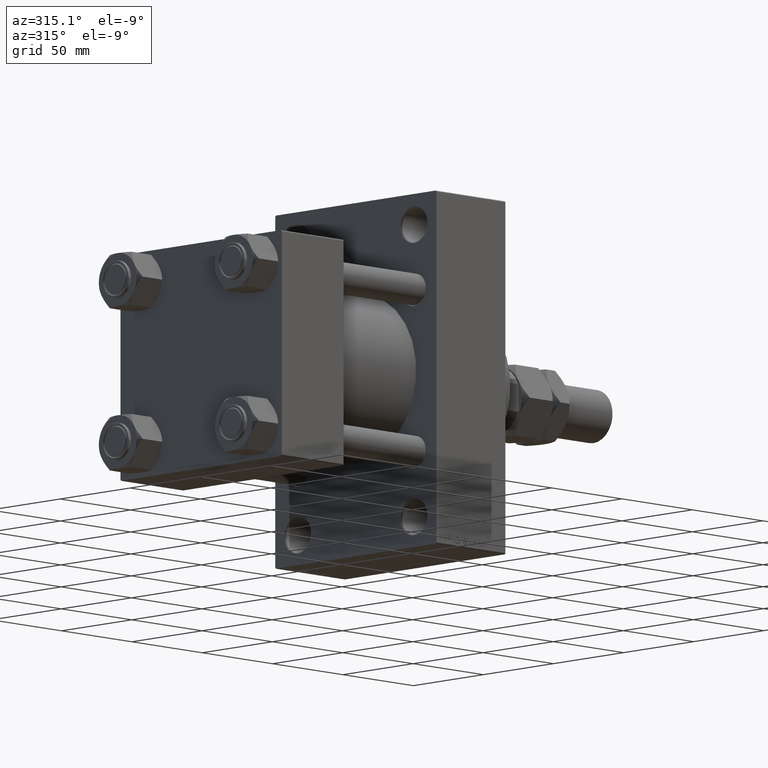
[diagram: clean part render]
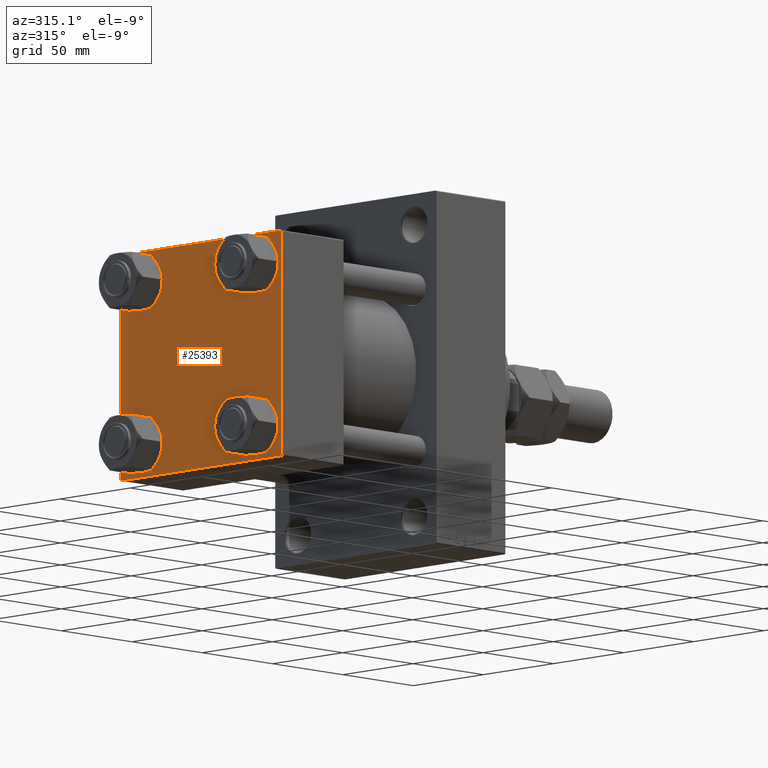
[diagram: same view with one face highlighted and labeled with its STEP entity id]
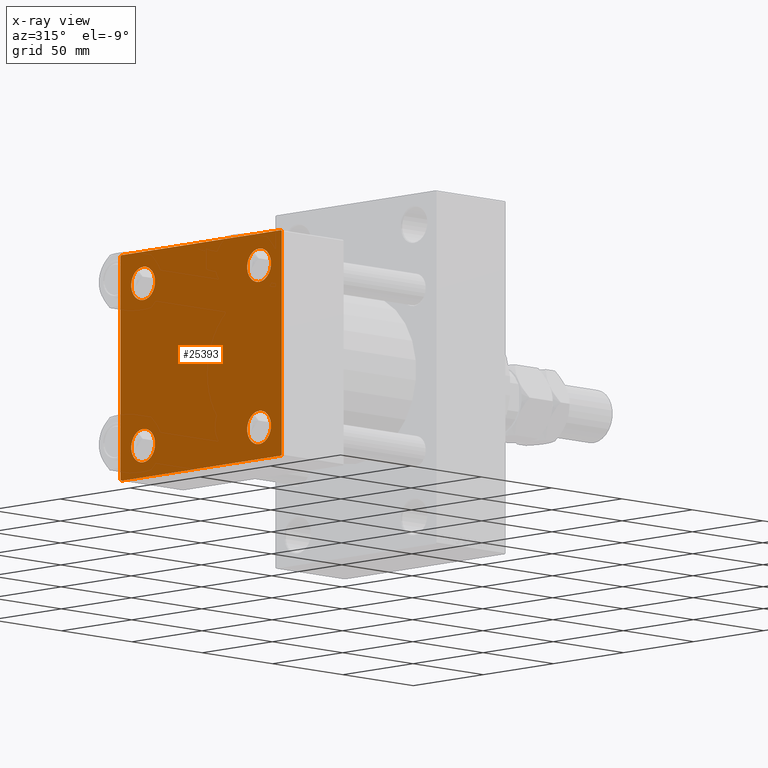
[diagram: x-ray of the same camera — body ghosted, the highlighted face saturated]
A machine part, auxiliary view. The second image highlights one B-rep face of the part: STEP entity #25393.
The next image is the same camera in x-ray: the body ghosted, the highlighted face saturated — about 0% of this face is hidden behind the body in this view.
In plain terms, the highlighted planar face has unit normal (-1, 0, 0).
Its self-contained STEP definition (entity closure, byte-faithful):
#300 = ORIENTED_EDGE ( 'NONE', *, *, #48935, .T. ) ;
#680 = CARTESIAN_POINT ( 'NONE',  ( 0.000000000000000000, 57.49999999999999289, 57.50000000000000711 ) ) ;
#1093 = DIRECTION ( 'NONE',  ( 1.000000000000000000, -0.000000000000000000, 0.000000000000000000 ) ) ;
#1628 = ORIENTED_EDGE ( 'NONE', *, *, #8029, .T. ) ;
#2349 = DIRECTION ( 'NONE',  ( 0.000000000000000000, 0.000000000000000000, 1.000000000000000000 ) ) ;
#2898 = VERTEX_POINT ( 'NONE', #3797 ) ;
#3068 = VERTEX_POINT ( 'NONE', #47160 ) ;
#3082 = CARTESIAN_POINT ( 'NONE',  ( 0.000000000000000000, 57.49999999999999289, 57.50000000000000711 ) ) ;
#3634 = CARTESIAN_POINT ( 'NONE',  ( 0.000000000000000000, -41.34999999999998721, -41.35000000000000853 ) ) ;
#3797 = CARTESIAN_POINT ( 'NONE',  ( 0.000000000000000000, -57.00000000000000711, -57.50000000000000711 ) ) ;
#3858 = DIRECTION ( 'NONE',  ( 0.000000000000000000, 0.000000000000000000, -1.000000000000000000 ) ) ;
#3900 = LINE ( 'NONE', #45307, #19636 ) ;
#4097 = AXIS2_PLACEMENT_3D ( 'NONE', #35499, #43714, #5305 ) ;
#4274 = CARTESIAN_POINT ( 'NONE',  ( 0.000000000000000000, 41.34999999999999432, -49.85000000000000142 ) ) ;
#4886 = CIRCLE ( 'NONE', #4097, 8.499999999999992895 ) ;
#5305 = DIRECTION ( 'NONE',  ( 0.000000000000000000, 0.000000000000000000, 1.000000000000000000 ) ) ;
#5515 = VECTOR ( 'NONE', #24321, 1000.000000000000114 ) ;
#5530 = VERTEX_POINT ( 'NONE', #8162 ) ;
#5842 = CARTESIAN_POINT ( 'NONE',  ( 0.000000000000000000, 41.34999999999999432, -32.85000000000000853 ) ) ;
#6157 = EDGE_LOOP ( 'NONE', ( #39520, #37223 ) ) ;
#6506 = DIRECTION ( 'NONE',  ( 1.000000000000000000, -0.000000000000000000, 0.000000000000000000 ) ) ;
#7120 = CARTESIAN_POINT ( 'NONE',  ( 0.000000000000000000, -41.34999999999998721, -49.85000000000000853 ) ) ;
#7763 = VERTEX_POINT ( 'NONE', #23341 ) ;
#7834 = VERTEX_POINT ( 'NONE', #23097 ) ;
#8029 = EDGE_CURVE ( 'NONE', #41057, #16056, #22052, .T. ) ;
#8162 = CARTESIAN_POINT ( 'NONE',  ( 0.000000000000000000, 57.00000000000002132, -57.49999999999999289 ) ) ;
#8345 = AXIS2_PLACEMENT_3D ( 'NONE', #23806, #1093, #46718 ) ;
#9538 = CARTESIAN_POINT ( 'NONE',  ( 0.000000000000000000, 41.34999999999999432, 49.85000000000000142 ) ) ;
#10573 = CARTESIAN_POINT ( 'NONE',  ( 0.000000000000000000, -41.34999999999998721, 41.35000000000000853 ) ) ;
#11548 = ORIENTED_EDGE ( 'NONE', *, *, #40543, .T. ) ;
#11798 = CARTESIAN_POINT ( 'NONE',  ( 0.000000000000000000, 57.49999999999999289, 57.00000000000003553 ) ) ;
#12108 = DIRECTION ( 'NONE',  ( 0.000000000000000000, -0.7071067811865474617, 0.7071067811865474617 ) ) ;
#12291 = CIRCLE ( 'NONE', #32197, 8.499999999999992895 ) ;
#12834 = LINE ( 'NONE', #39508, #20918 ) ;
#12851 = ORIENTED_EDGE ( 'NONE', *, *, #22006, .T. ) ;
#13525 = EDGE_CURVE ( 'NONE', #7834, #15741, #45735, .T. ) ;
#13954 = AXIS2_PLACEMENT_3D ( 'NONE', #25956, #33456, #33209 ) ;
#14229 = DIRECTION ( 'NONE',  ( 1.000000000000000000, -0.000000000000000000, 0.000000000000000000 ) ) ;
#14626 = CARTESIAN_POINT ( 'NONE',  ( 0.000000000000000000, -57.00000000000003553, 57.49999999999999289 ) ) ;
#14642 = DIRECTION ( 'NONE',  ( -1.000000000000000000, 0.000000000000000000, -0.000000000000000000 ) ) ;
#14838 = CIRCLE ( 'NONE', #48263, 8.499999999999992895 ) ;
#14896 = FACE_BOUND ( 'NONE', #48901, .T. ) ;
#14930 = VERTEX_POINT ( 'NONE', #15223 ) ;
#15223 = CARTESIAN_POINT ( 'NONE',  ( 0.000000000000000000, -41.34999999999998721, 49.85000000000000853 ) ) ;
#15301 = ORIENTED_EDGE ( 'NONE', *, *, #44926, .T. ) ;
#15741 = VERTEX_POINT ( 'NONE', #21036 ) ;
#16056 = VERTEX_POINT ( 'NONE', #47815 ) ;
#16113 = ORIENTED_EDGE ( 'NONE', *, *, #33406, .F. ) ;
#16351 = LINE ( 'NONE', #32299, #5515 ) ;
#16432 = LINE ( 'NONE', #16913, #47800 ) ;
#16562 = EDGE_CURVE ( 'NONE', #14930, #46399, #21107, .T. ) ;
#16913 = CARTESIAN_POINT ( 'NONE',  ( 0.000000000000000000, 57.49999999999999289, -57.49999999999999289 ) ) ;
#17220 = DIRECTION ( 'NONE',  ( 0.000000000000000000, 0.000000000000000000, 1.000000000000000000 ) ) ;
#17641 = PLANE ( 'NONE',  #30849 ) ;
#18388 = FACE_OUTER_BOUND ( 'NONE', #24145, .T. ) ;
#18609 = VERTEX_POINT ( 'NONE', #9538 ) ;
#19000 = AXIS2_PLACEMENT_3D ( 'NONE', #3634, #49265, #26095 ) ;
#19101 = CARTESIAN_POINT ( 'NONE',  ( 0.000000000000000000, -41.34999999999998721, -32.85000000000001563 ) ) ;
#19129 = DIRECTION ( 'NONE',  ( -0.000000000000000000, 0.7071067811865376918, 0.7071067811865573427 ) ) ;
#19636 = VECTOR ( 'NONE', #19129, 1000.000000000000114 ) ;
#19649 = LINE ( 'NONE', #680, #29526 ) ;
#20640 = ORIENTED_EDGE ( 'NONE', *, *, #38777, .T. ) ;
#20918 = VECTOR ( 'NONE', #12108, 1000.000000000000114 ) ;
#21036 = CARTESIAN_POINT ( 'NONE',  ( 0.000000000000000000, -57.50000000000000711, -57.00000000000000711 ) ) ;
#21107 = CIRCLE ( 'NONE', #8345, 8.499999999999992895 ) ;
#22006 = EDGE_CURVE ( 'NONE', #24267, #38893, #23561, .T. ) ;
#22052 = LINE ( 'NONE', #3082, #46995 ) ;
#22129 = VERTEX_POINT ( 'NONE', #19101 ) ;
#22421 = EDGE_CURVE ( 'NONE', #46399, #14930, #14838, .T. ) ;
#23097 = CARTESIAN_POINT ( 'NONE',  ( 0.000000000000000000, -57.50000000000000711, 57.00000000000000711 ) ) ;
#23104 = VERTEX_POINT ( 'NONE', #14626 ) ;
#23341 = CARTESIAN_POINT ( 'NONE',  ( 0.000000000000000000, 41.34999999999999432, 32.85000000000000853 ) ) ;
#23561 = CIRCLE ( 'NONE', #45848, 8.499999999999992895 ) ;
#23806 = CARTESIAN_POINT ( 'NONE',  ( 0.000000000000000000, -41.34999999999998721, 41.35000000000000853 ) ) ;
#23831 = EDGE_CURVE ( 'NONE', #16056, #5530, #25720, .T. ) ;
#24145 = EDGE_LOOP ( 'NONE', ( #1628, #44465, #44339, #11548, #37576, #35055, #16113, #32489 ) ) ;
#24267 = VERTEX_POINT ( 'NONE', #5842 ) ;
#24321 = DIRECTION ( 'NONE',  ( 0.000000000000000000, 0.7071067811865573427, -0.7071067811865376918 ) ) ;
#24463 = AXIS2_PLACEMENT_3D ( 'NONE', #47886, #14229, #17220 ) ;
#25383 = CARTESIAN_POINT ( 'NONE',  ( 0.000000000000000000, -57.50000000000000711, 57.49999999999999289 ) ) ;
#25393 = ADVANCED_FACE ( 'NONE', ( #48544, #29611, #14896, #44808, #18388 ), #17641, .T. ) ;
#25720 = LINE ( 'NONE', #40691, #41131 ) ;
#25956 = CARTESIAN_POINT ( 'NONE',  ( 0.000000000000000000, 41.34999999999999432, 41.35000000000000142 ) ) ;
#26095 = DIRECTION ( 'NONE',  ( 0.000000000000000000, 0.000000000000000000, 1.000000000000000000 ) ) ;
#26570 = EDGE_LOOP ( 'NONE', ( #47380, #300 ) ) ;
#26692 = CARTESIAN_POINT ( 'NONE',  ( 0.000000000000000000, 41.34999999999999432, 41.35000000000000142 ) ) ;
#28103 = EDGE_CURVE ( 'NONE', #22129, #40513, #28570, .T. ) ;
#28570 = CIRCLE ( 'NONE', #19000, 8.499999999999992895 ) ;
#28970 = CARTESIAN_POINT ( 'NONE',  ( 0.000000000000000000, -41.34999999999998721, 32.85000000000001563 ) ) ;
#29018 = DIRECTION ( 'NONE',  ( 1.000000000000000000, -0.000000000000000000, 0.000000000000000000 ) ) ;
#29526 = VECTOR ( 'NONE', #42328, 1000.000000000000000 ) ;
#29584 = DIRECTION ( 'NONE',  ( 1.000000000000000000, -0.000000000000000000, 0.000000000000000000 ) ) ;
#29611 = FACE_BOUND ( 'NONE', #26570, .T. ) ;
#29830 = DIRECTION ( 'NONE',  ( 0.000000000000000000, 0.000000000000000000, 1.000000000000000000 ) ) ;
#30558 = EDGE_CURVE ( 'NONE', #3068, #41057, #16351, .T. ) ;
#30849 = AXIS2_PLACEMENT_3D ( 'NONE', #48792, #14642, #32862 ) ;
#31245 = VECTOR ( 'NONE', #3858, 1000.000000000000000 ) ;
#31655 = DIRECTION ( 'NONE',  ( 0.000000000000000000, -1.000000000000000000, -1.206764157201257045E-16 ) ) ;
#32197 = AXIS2_PLACEMENT_3D ( 'NONE', #26692, #6506, #40923 ) ;
#32299 = CARTESIAN_POINT ( 'NONE',  ( 0.000000000000000000, 57.24999999999922551, 57.25000000000081712 ) ) ;
#32489 = ORIENTED_EDGE ( 'NONE', *, *, #30558, .T. ) ;
#32862 = DIRECTION ( 'NONE',  ( -0.000000000000000000, 0.000000000000000000, 1.000000000000000000 ) ) ;
#33209 = DIRECTION ( 'NONE',  ( 0.000000000000000000, 0.000000000000000000, 1.000000000000000000 ) ) ;
#33406 = EDGE_CURVE ( 'NONE', #3068, #23104, #19649, .T. ) ;
#33456 = DIRECTION ( 'NONE',  ( 1.000000000000000000, -0.000000000000000000, 0.000000000000000000 ) ) ;
#33519 = DIRECTION ( 'NONE',  ( 0.000000000000000000, 0.000000000000000000, -1.000000000000000000 ) ) ;
#35055 = ORIENTED_EDGE ( 'NONE', *, *, #47135, .T. ) ;
#35499 = CARTESIAN_POINT ( 'NONE',  ( 0.000000000000000000, 41.34999999999999432, -41.35000000000000142 ) ) ;
#36605 = EDGE_CURVE ( 'NONE', #5530, #2898, #16432, .T. ) ;
#37223 = ORIENTED_EDGE ( 'NONE', *, *, #22421, .T. ) ;
#37576 = ORIENTED_EDGE ( 'NONE', *, *, #13525, .F. ) ;
#38777 = EDGE_CURVE ( 'NONE', #38893, #24267, #4886, .T. ) ;
#38893 = VERTEX_POINT ( 'NONE', #4274 ) ;
#39508 = CARTESIAN_POINT ( 'NONE',  ( 0.000000000000000000, -57.25000000000000711, -57.25000000000000711 ) ) ;
#39520 = ORIENTED_EDGE ( 'NONE', *, *, #16562, .T. ) ;
#40300 = CARTESIAN_POINT ( 'NONE',  ( 0.000000000000000000, 41.34999999999999432, -41.35000000000000142 ) ) ;
#40513 = VERTEX_POINT ( 'NONE', #7120 ) ;
#40543 = EDGE_CURVE ( 'NONE', #2898, #15741, #12834, .T. ) ;
#40691 = CARTESIAN_POINT ( 'NONE',  ( 0.000000000000000000, 57.25000000000081712, -57.24999999999922551 ) ) ;
#40923 = DIRECTION ( 'NONE',  ( 0.000000000000000000, 0.000000000000000000, 1.000000000000000000 ) ) ;
#41057 = VERTEX_POINT ( 'NONE', #11798 ) ;
#41131 = VECTOR ( 'NONE', #49142, 1000.000000000000114 ) ;
#41284 = EDGE_CURVE ( 'NONE', #7763, #18609, #12291, .T. ) ;
#42328 = DIRECTION ( 'NONE',  ( 0.000000000000000000, -1.000000000000000000, -1.206764157201257045E-16 ) ) ;
#43567 = CIRCLE ( 'NONE', #24463, 8.499999999999992895 ) ;
#43714 = DIRECTION ( 'NONE',  ( 1.000000000000000000, -0.000000000000000000, 0.000000000000000000 ) ) ;
#44339 = ORIENTED_EDGE ( 'NONE', *, *, #36605, .T. ) ;
#44465 = ORIENTED_EDGE ( 'NONE', *, *, #23831, .T. ) ;
#44808 = FACE_BOUND ( 'NONE', #46693, .T. ) ;
#44926 = EDGE_CURVE ( 'NONE', #18609, #7763, #49010, .T. ) ;
#45307 = CARTESIAN_POINT ( 'NONE',  ( -0.000000000000000000, -57.25000000000081712, 57.24999999999922551 ) ) ;
#45735 = LINE ( 'NONE', #25383, #31245 ) ;
#45848 = AXIS2_PLACEMENT_3D ( 'NONE', #40300, #29584, #29830 ) ;
#46399 = VERTEX_POINT ( 'NONE', #28970 ) ;
#46693 = EDGE_LOOP ( 'NONE', ( #15301, #48321 ) ) ;
#46718 = DIRECTION ( 'NONE',  ( 0.000000000000000000, 0.000000000000000000, 1.000000000000000000 ) ) ;
#46995 = VECTOR ( 'NONE', #33519, 1000.000000000000000 ) ;
#47135 = EDGE_CURVE ( 'NONE', #7834, #23104, #3900, .T. ) ;
#47160 = CARTESIAN_POINT ( 'NONE',  ( 0.000000000000000000, 57.00000000000000711, 57.50000000000000711 ) ) ;
#47380 = ORIENTED_EDGE ( 'NONE', *, *, #28103, .T. ) ;
#47800 = VECTOR ( 'NONE', #31655, 1000.000000000000000 ) ;
#47815 = CARTESIAN_POINT ( 'NONE',  ( 0.000000000000000000, 57.49999999999999289, -57.00000000000000711 ) ) ;
#47886 = CARTESIAN_POINT ( 'NONE',  ( 0.000000000000000000, -41.34999999999998721, -41.35000000000000853 ) ) ;
#48263 = AXIS2_PLACEMENT_3D ( 'NONE', #10573, #29018, #2349 ) ;
#48321 = ORIENTED_EDGE ( 'NONE', *, *, #41284, .T. ) ;
#48544 = FACE_BOUND ( 'NONE', #6157, .T. ) ;
#48792 = CARTESIAN_POINT ( 'NONE',  ( 0.000000000000000000, 0.000000000000000000, 0.000000000000000000 ) ) ;
#48901 = EDGE_LOOP ( 'NONE', ( #12851, #20640 ) ) ;
#48935 = EDGE_CURVE ( 'NONE', #40513, #22129, #43567, .T. ) ;
#49010 = CIRCLE ( 'NONE', #13954, 8.499999999999992895 ) ;
#49142 = DIRECTION ( 'NONE',  ( -0.000000000000000000, -0.7071067811865376918, -0.7071067811865573427 ) ) ;
#49265 = DIRECTION ( 'NONE',  ( 1.000000000000000000, -0.000000000000000000, 0.000000000000000000 ) ) ;